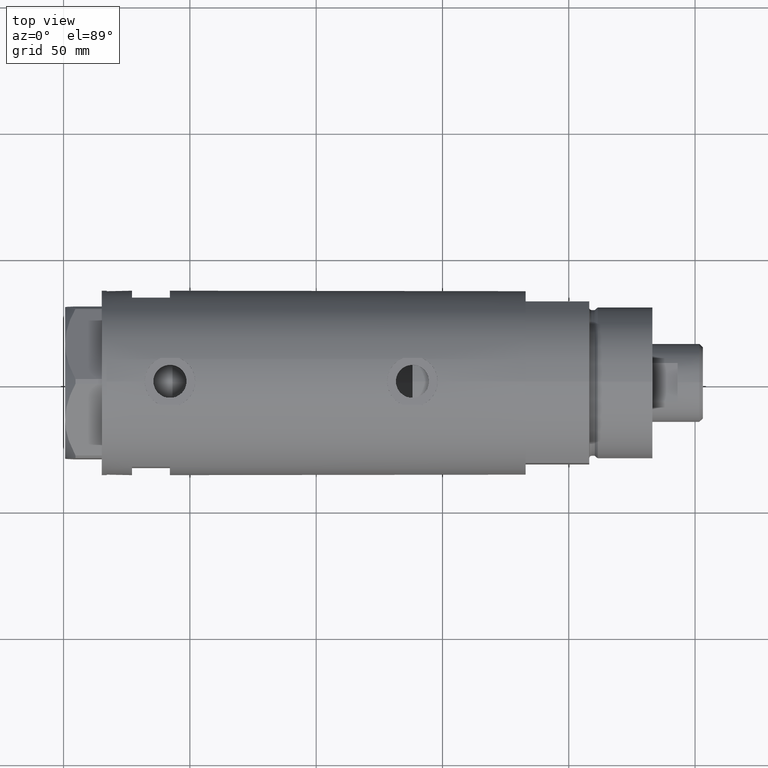
[diagram: clean part render]
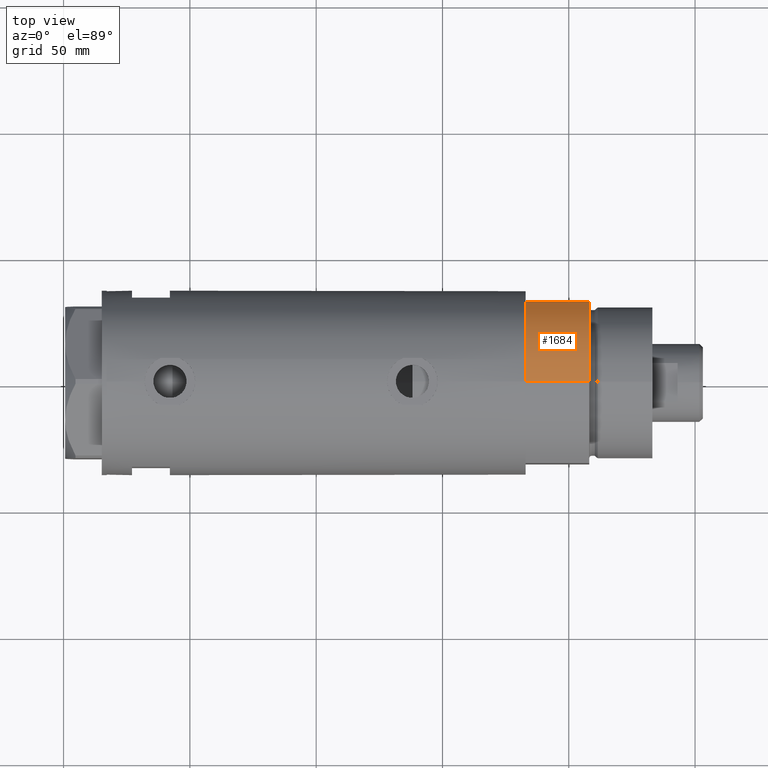
[diagram: same view with one face highlighted and labeled with its STEP entity id]
A machine part, top view. The second image highlights one B-rep face of the part: STEP entity #1684.
In plain terms, the highlighted cylindrical surface (partial cylindrical patch) has radius 36.5 mm, axis along (-1, -0, 0).
Its self-contained STEP definition (entity closure, byte-faithful):
#59 = VERTEX_POINT ( 'NONE', #3133 ) ;
#215 = CIRCLE ( 'NONE', #2611, 36.50000000000000000 ) ;
#348 = CARTESIAN_POINT ( 'NONE',  ( -17.55704986607943496, 32.00000000000000000, 25.19999999999999929 ) ) ;
#436 = DIRECTION ( 'NONE',  ( -0.000000000000000000, -0.000000000000000000, -1.000000000000000000 ) ) ;
#694 = VERTEX_POINT ( 'NONE', #972 ) ;
#715 = ORIENTED_EDGE ( 'NONE', *, *, #5917, .F. ) ;
#824 = LINE ( 'NONE', #2157, #3201 ) ;
#903 = ORIENTED_EDGE ( 'NONE', *, *, #2323, .F. ) ;
#972 = CARTESIAN_POINT ( 'NONE',  ( -36.50000000000000000, 0.000000000000000000, 25.19999999999999929 ) ) ;
#1241 = VECTOR ( 'NONE', #5704, 1000.000000000000000 ) ;
#1286 = CYLINDRICAL_SURFACE ( 'NONE', #3760, 36.50000000000000000 ) ;
#1344 = CIRCLE ( 'NONE', #2507, 36.50000000000000000 ) ;
#1363 = ORIENTED_EDGE ( 'NONE', *, *, #4356, .T. ) ;
#1416 = DIRECTION ( 'NONE',  ( 0.000000000000000000, 0.000000000000000000, 1.000000000000000000 ) ) ;
#1479 = CARTESIAN_POINT ( 'NONE',  ( 0.000000000000000000, 0.000000000000000000, 0.000000000000000000 ) ) ;
#1684 = ADVANCED_FACE ( 'NONE', ( #2648 ), #1286, .T. ) ;
#1829 = CARTESIAN_POINT ( 'NONE',  ( -36.50000000000000000, 0.000000000000000000, 0.000000000000000000 ) ) ;
#2004 = DIRECTION ( 'NONE',  ( 1.000000000000000000, 0.000000000000000000, 0.000000000000000000 ) ) ;
#2068 = VERTEX_POINT ( 'NONE', #1829 ) ;
#2157 = CARTESIAN_POINT ( 'NONE',  ( -36.50000000000000000, 0.000000000000000000, 25.19999999999999929 ) ) ;
#2323 = EDGE_CURVE ( 'NONE', #59, #4840, #2524, .T. ) ;
#2507 = AXIS2_PLACEMENT_3D ( 'NONE', #1479, #1416, #5926 ) ;
#2524 = LINE ( 'NONE', #4308, #1241 ) ;
#2561 = ORIENTED_EDGE ( 'NONE', *, *, #5236, .F. ) ;
#2611 = AXIS2_PLACEMENT_3D ( 'NONE', #4304, #3401, #2004 ) ;
#2648 = FACE_OUTER_BOUND ( 'NONE', #5732, .T. ) ;
#3133 = CARTESIAN_POINT ( 'NONE',  ( -17.55704986607943141, 32.00000000000000000, 0.000000000000000000 ) ) ;
#3201 = VECTOR ( 'NONE', #436, 1000.000000000000000 ) ;
#3401 = DIRECTION ( 'NONE',  ( 0.000000000000000000, 0.000000000000000000, 1.000000000000000000 ) ) ;
#3760 = AXIS2_PLACEMENT_3D ( 'NONE', #4498, #4592, #4978 ) ;
#4304 = CARTESIAN_POINT ( 'NONE',  ( 0.000000000000000000, 0.000000000000000000, 25.19999999999999929 ) ) ;
#4308 = CARTESIAN_POINT ( 'NONE',  ( -17.55704986607943141, 32.00000000000000000, 0.000000000000000000 ) ) ;
#4356 = EDGE_CURVE ( 'NONE', #59, #2068, #1344, .T. ) ;
#4498 = CARTESIAN_POINT ( 'NONE',  ( 0.000000000000000000, 0.000000000000000000, 25.19999999999999929 ) ) ;
#4592 = DIRECTION ( 'NONE',  ( -0.000000000000000000, -0.000000000000000000, -1.000000000000000000 ) ) ;
#4840 = VERTEX_POINT ( 'NONE', #348 ) ;
#4978 = DIRECTION ( 'NONE',  ( -1.000000000000000000, 0.000000000000000000, 0.000000000000000000 ) ) ;
#5236 = EDGE_CURVE ( 'NONE', #694, #2068, #824, .T. ) ;
#5704 = DIRECTION ( 'NONE',  ( -0.000000000000000000, -0.000000000000000000, 1.000000000000000000 ) ) ;
#5732 = EDGE_LOOP ( 'NONE', ( #2561, #715, #903, #1363 ) ) ;
#5917 = EDGE_CURVE ( 'NONE', #4840, #694, #215, .T. ) ;
#5926 = DIRECTION ( 'NONE',  ( 1.000000000000000000, 0.000000000000000000, 0.000000000000000000 ) ) ;